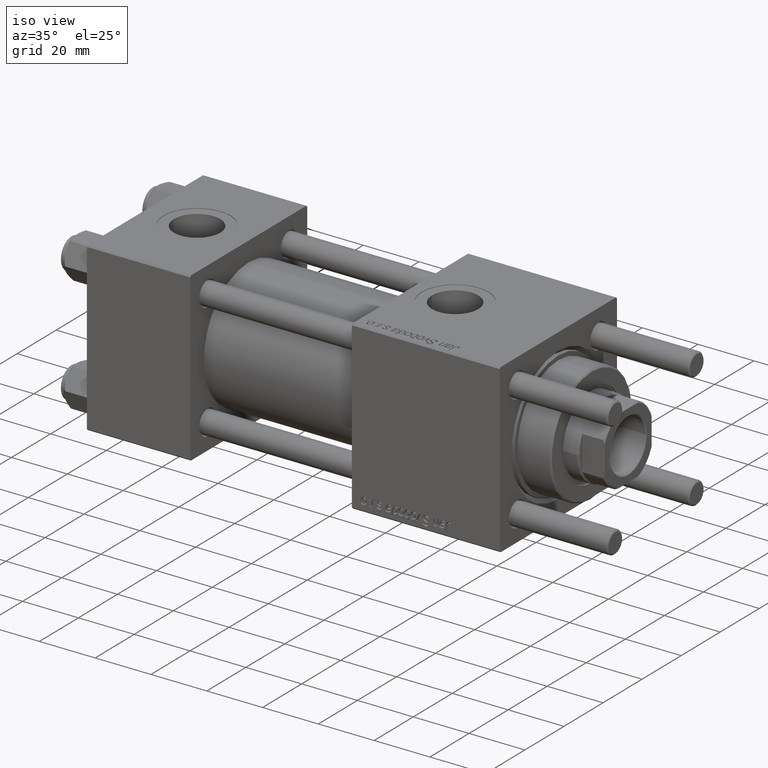
[diagram: clean part render]
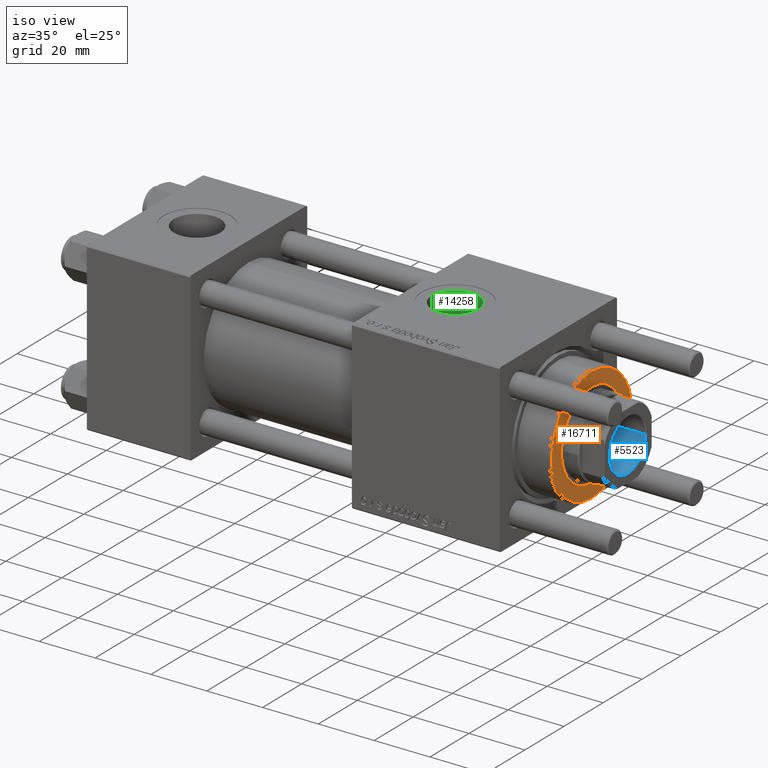
[diagram: same view with three faces highlighted in distinct colors, each labeled with its STEP entity id]
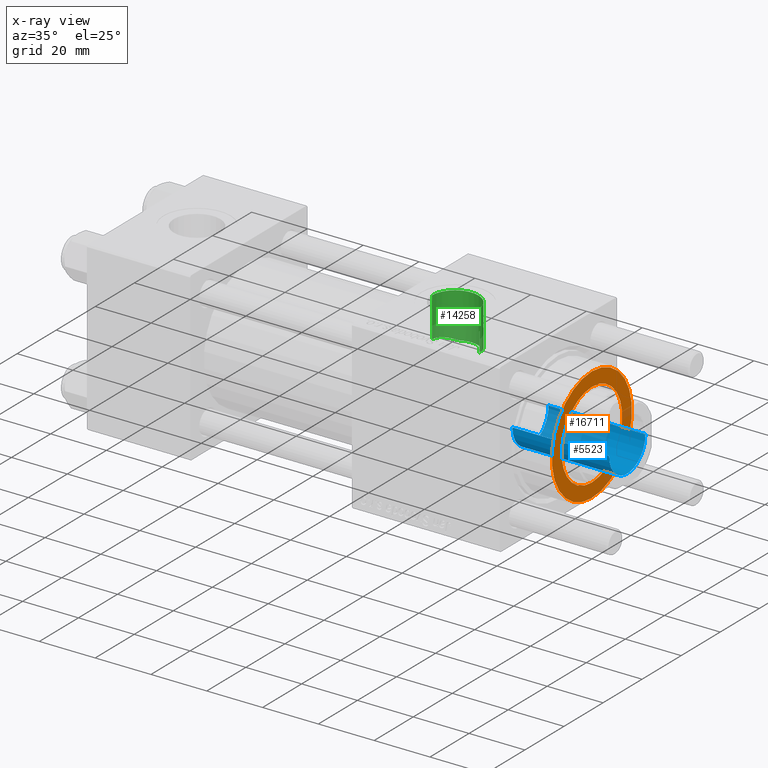
[diagram: x-ray of the same camera — body ghosted, the three highlighted faces saturated]
A machine part, iso view with three faces highlighted in distinct colors.
The next image is the same camera in x-ray (body ghosted, the three faces saturated) — at least one of them is partly hidden behind the body in this view.
Their STEP definitions:

[orange] entity #16711 — the highlighted planar face has unit normal (1, 0, 0).
#8494 = CARTESIAN_POINT ( 'NONE',  ( 15.50000000000000000, 0.000000000000000000, 40.70000000000000284 ) ) ;
#10498 = AXIS2_PLACEMENT_3D ( 'NONE', #40832, #23634, #18322 ) ;
#10615 = ORIENTED_EDGE ( 'NONE', *, *, #32553, .T. ) ;
#10831 = CARTESIAN_POINT ( 'NONE',  ( 0.000000000000000000, 0.000000000000000000, 40.70000000000000284 ) ) ;
#10853 = EDGE_LOOP ( 'NONE', ( #10615, #28571 ) ) ;
#11790 = DIRECTION ( 'NONE',  ( 0.000000000000000000, 0.000000000000000000, 1.000000000000000000 ) ) ;
#13410 = PLANE ( 'NONE',  #22322 ) ;
#14211 = VERTEX_POINT ( 'NONE', #37055 ) ;
#14426 = DIRECTION ( 'NONE',  ( 1.000000000000000000, 0.000000000000000000, 0.000000000000000000 ) ) ;
#16711 = ADVANCED_FACE ( 'NONE', ( #58105, #17848 ), #13410, .T. ) ;
#17848 = FACE_OUTER_BOUND ( 'NONE', #10853, .T. ) ;
#18322 = DIRECTION ( 'NONE',  ( 1.000000000000000000, 0.000000000000000000, 0.000000000000000000 ) ) ;
#20668 = CARTESIAN_POINT ( 'NONE',  ( 0.000000000000000000, 0.000000000000000000, 40.70000000000000284 ) ) ;
#22322 = AXIS2_PLACEMENT_3D ( 'NONE', #31488, #44511, #50121 ) ;
#22737 = CARTESIAN_POINT ( 'NONE',  ( 0.000000000000000000, 0.000000000000000000, 40.70000000000000284 ) ) ;
#23634 = DIRECTION ( 'NONE',  ( 0.000000000000000000, 0.000000000000000000, 1.000000000000000000 ) ) ;
#23742 = CIRCLE ( 'NONE', #10498, 20.49999999999999645 ) ;
#27772 = DIRECTION ( 'NONE',  ( 0.000000000000000000, 0.000000000000000000, 1.000000000000000000 ) ) ;
#28571 = ORIENTED_EDGE ( 'NONE', *, *, #52144, .T. ) ;
#29134 = CIRCLE ( 'NONE', #54630, 15.50000000000000000 ) ;
#30544 = EDGE_CURVE ( 'NONE', #56788, #58514, #34919, .T. ) ;
#31168 = AXIS2_PLACEMENT_3D ( 'NONE', #10831, #56119, #42818 ) ;
#31488 = CARTESIAN_POINT ( 'NONE',  ( 0.000000000000000000, 0.000000000000000000, 40.70000000000000284 ) ) ;
#32553 = EDGE_CURVE ( 'NONE', #14211, #53557, #41595, .T. ) ;
#33617 = EDGE_LOOP ( 'NONE', ( #47674, #43096 ) ) ;
#34919 = CIRCLE ( 'NONE', #31168, 15.50000000000000000 ) ;
#37055 = CARTESIAN_POINT ( 'NONE',  ( -20.49999999999999645, 0.000000000000000000, 40.70000000000000284 ) ) ;
#38733 = DIRECTION ( 'NONE',  ( 1.000000000000000000, 0.000000000000000000, 0.000000000000000000 ) ) ;
#39177 = CARTESIAN_POINT ( 'NONE',  ( 20.49999999999999645, 2.541142108230757480E-15, 40.70000000000000284 ) ) ;
#39183 = EDGE_CURVE ( 'NONE', #58514, #56788, #29134, .T. ) ;
#40832 = CARTESIAN_POINT ( 'NONE',  ( 0.000000000000000000, 0.000000000000000000, 40.70000000000000284 ) ) ;
#41595 = CIRCLE ( 'NONE', #56700, 20.49999999999999645 ) ;
#42818 = DIRECTION ( 'NONE',  ( 1.000000000000000000, 0.000000000000000000, 0.000000000000000000 ) ) ;
#43096 = ORIENTED_EDGE ( 'NONE', *, *, #30544, .F. ) ;
#44511 = DIRECTION ( 'NONE',  ( 0.000000000000000000, 0.000000000000000000, 1.000000000000000000 ) ) ;
#47161 = CARTESIAN_POINT ( 'NONE',  ( -15.50000000000000000, 1.898202538678397557E-15, 40.70000000000000284 ) ) ;
#47674 = ORIENTED_EDGE ( 'NONE', *, *, #39183, .F. ) ;
#50121 = DIRECTION ( 'NONE',  ( 1.000000000000000000, 0.000000000000000000, -0.000000000000000000 ) ) ;
#52144 = EDGE_CURVE ( 'NONE', #53557, #14211, #23742, .T. ) ;
#53557 = VERTEX_POINT ( 'NONE', #39177 ) ;
#54630 = AXIS2_PLACEMENT_3D ( 'NONE', #20668, #11790, #38733 ) ;
#56119 = DIRECTION ( 'NONE',  ( 0.000000000000000000, 0.000000000000000000, 1.000000000000000000 ) ) ;
#56700 = AXIS2_PLACEMENT_3D ( 'NONE', #22737, #27772, #14426 ) ;
#56788 = VERTEX_POINT ( 'NONE', #47161 ) ;
#58105 = FACE_BOUND ( 'NONE', #33617, .T. ) ;
#58514 = VERTEX_POINT ( 'NONE', #8494 ) ;

[blue] entity #5523 — the highlighted cylindrical surface (edge-blend (fillet) strip) has radius 9.25 mm, axis along (1, 0, 0).
#762 = DIRECTION ( 'NONE',  ( 1.000000000000000000, 0.000000000000000000, 0.000000000000000000 ) ) ;
#2015 = LINE ( 'NONE', #37557, #16902 ) ;
#2022 = ORIENTED_EDGE ( 'NONE', *, *, #17522, .F. ) ;
#2674 = EDGE_CURVE ( 'NONE', #7829, #44137, #49438, .T. ) ;
#3426 = CARTESIAN_POINT ( 'NONE',  ( 9.249999999999992895, 0.000000000000000000, 101.0000000000000000 ) ) ;
#4253 = CARTESIAN_POINT ( 'NONE',  ( -9.249999999999992895, 1.132798289211300712E-15, 101.0000000000000000 ) ) ;
#5523 = ADVANCED_FACE ( 'NONE', ( #21948 ), #40014, .F. ) ;
#7829 = VERTEX_POINT ( 'NONE', #3426 ) ;
#8119 = CARTESIAN_POINT ( 'NONE',  ( -9.249999999999994671, 1.132798289211300909E-15, 135.7000000000000455 ) ) ;
#10666 = CARTESIAN_POINT ( 'NONE',  ( 9.249999999999994671, 0.000000000000000000, 135.7000000000000455 ) ) ;
#13202 = LINE ( 'NONE', #13499, #40294 ) ;
#13499 = CARTESIAN_POINT ( 'NONE',  ( -9.249999999999994671, 1.132798289211300909E-15, 136.0000000000000000 ) ) ;
#14100 = CARTESIAN_POINT ( 'NONE',  ( 0.000000000000000000, 0.000000000000000000, 135.7000000000000455 ) ) ;
#16048 = CARTESIAN_POINT ( 'NONE',  ( 0.000000000000000000, 0.000000000000000000, 136.0000000000000000 ) ) ;
#16902 = VECTOR ( 'NONE', #33419, 1000.000000000000000 ) ;
#17522 = EDGE_CURVE ( 'NONE', #44137, #28343, #13202, .T. ) ;
#21948 = FACE_OUTER_BOUND ( 'NONE', #27906, .T. ) ;
#22675 = DIRECTION ( 'NONE',  ( -0.000000000000000000, -0.000000000000000000, 1.000000000000000000 ) ) ;
#22906 = EDGE_CURVE ( 'NONE', #43405, #28343, #36706, .T. ) ;
#25519 = DIRECTION ( 'NONE',  ( 1.000000000000000000, 0.000000000000000000, 0.000000000000000000 ) ) ;
#26315 = AXIS2_PLACEMENT_3D ( 'NONE', #14100, #27144, #762 ) ;
#27144 = DIRECTION ( 'NONE',  ( 0.000000000000000000, 0.000000000000000000, 1.000000000000000000 ) ) ;
#27906 = EDGE_LOOP ( 'NONE', ( #2022, #32679, #46612, #50749 ) ) ;
#28343 = VERTEX_POINT ( 'NONE', #8119 ) ;
#29368 = EDGE_CURVE ( 'NONE', #7829, #43405, #2015, .T. ) ;
#29587 = AXIS2_PLACEMENT_3D ( 'NONE', #55740, #51898, #42732 ) ;
#30856 = DIRECTION ( 'NONE',  ( -0.000000000000000000, -0.000000000000000000, 1.000000000000000000 ) ) ;
#32679 = ORIENTED_EDGE ( 'NONE', *, *, #2674, .F. ) ;
#33419 = DIRECTION ( 'NONE',  ( -0.000000000000000000, -0.000000000000000000, 1.000000000000000000 ) ) ;
#36706 = CIRCLE ( 'NONE', #26315, 9.249999999999994671 ) ;
#37557 = CARTESIAN_POINT ( 'NONE',  ( 9.249999999999994671, 0.000000000000000000, 136.0000000000000000 ) ) ;
#40014 = CYLINDRICAL_SURFACE ( 'NONE', #44786, 9.249999999999994671 ) ;
#40294 = VECTOR ( 'NONE', #22675, 1000.000000000000000 ) ;
#42732 = DIRECTION ( 'NONE',  ( 1.000000000000000000, 0.000000000000000000, 0.000000000000000000 ) ) ;
#43405 = VERTEX_POINT ( 'NONE', #10666 ) ;
#44137 = VERTEX_POINT ( 'NONE', #4253 ) ;
#44786 = AXIS2_PLACEMENT_3D ( 'NONE', #16048, #30856, #25519 ) ;
#46612 = ORIENTED_EDGE ( 'NONE', *, *, #29368, .T. ) ;
#49438 = CIRCLE ( 'NONE', #29587, 9.249999999999992895 ) ;
#50749 = ORIENTED_EDGE ( 'NONE', *, *, #22906, .T. ) ;
#51898 = DIRECTION ( 'NONE',  ( -0.000000000000000000, -0.000000000000000000, 1.000000000000000000 ) ) ;
#55740 = CARTESIAN_POINT ( 'NONE',  ( 0.000000000000000000, 0.000000000000000000, 101.0000000000000000 ) ) ;

[green] entity #14258 — the highlighted cylindrical surface (edge-blend (fillet) strip) has radius 8.33 mm, axis along (0, 0, -1).
#283 = ORIENTED_EDGE ( 'NONE', *, *, #36643, .F. ) ;
#1935 = CARTESIAN_POINT ( 'NONE',  ( 119.2999999999999829, 0.7063285354565354002, 15.48389808801387701 ) ) ;
#3480 = CARTESIAN_POINT ( 'NONE',  ( 119.2999999999999829, 0.7063285354565354002, 22.48891060056044466 ) ) ;
#4631 = EDGE_LOOP ( 'NONE', ( #283, #26052, #56955, #25205, #39064, #50948, #38801, #6866 ) ) ;
#5782 = CARTESIAN_POINT ( 'NONE',  ( 118.2534000047989053, 4.111271999610588423, 14.94835106229172972 ) ) ;
#5992 = EDGE_CURVE ( 'NONE', #12126, #55106, #22329, .T. ) ;
#6077 = CARTESIAN_POINT ( 'NONE',  ( 117.0000841562242044, 5.788852077867601587, 14.38116921446072638 ) ) ;
#6358 = CARTESIAN_POINT ( 'NONE',  ( 105.9544709984673005, 6.638852620574125396, 14.00831860901981685 ) ) ;
#6368 = CARTESIAN_POINT ( 'NONE',  ( 119.3300000000000125, -2.449316168263869821E-15, 29.79999999999999716 ) ) ;
#6535 = AXIS2_PLACEMENT_3D ( 'NONE', #12213, #11921, #56614 ) ;
#6866 = ORIENTED_EDGE ( 'NONE', *, *, #10557, .T. ) ;
#7607 = EDGE_CURVE ( 'NONE', #37468, #20586, #39113, .T. ) ;
#7715 = DIRECTION ( 'NONE',  ( 0.000000000000000000, 0.000000000000000000, -1.000000000000000000 ) ) ;
#8549 = DIRECTION ( 'NONE',  ( 1.000000000000000000, 0.000000000000000000, 0.000000000000000000 ) ) ;
#9948 = CARTESIAN_POINT ( 'NONE',  ( 117.6798436837577526, 4.989036688639853168, 14.67824946145072573 ) ) ;
#10557 = EDGE_CURVE ( 'NONE', #37468, #41539, #29313, .T. ) ;
#10672 = FACE_OUTER_BOUND ( 'NONE', #4631, .T. ) ;
#11391 = CARTESIAN_POINT ( 'NONE',  ( 102.6699999999999591, 0.3922003781329697625, 15.50000000000000711 ) ) ;
#11921 = DIRECTION ( 'NONE',  ( -0.000000000000000000, -0.000000000000000000, -1.000000000000000000 ) ) ;
#12126 = VERTEX_POINT ( 'NONE', #22585 ) ;
#12213 = CARTESIAN_POINT ( 'NONE',  ( 111.0000000000000000, -3.469446951953613794E-15, 29.79999999999999716 ) ) ;
#14258 = ADVANCED_FACE ( 'NONE', ( #10672 ), #14540, .F. ) ;
#14540 = CYLINDRICAL_SURFACE ( 'NONE', #47784, 8.330000000000003624 ) ;
#14684 = CARTESIAN_POINT ( 'NONE',  ( 118.7201712771789062, 3.148968827298817885, 15.18062598671787811 ) ) ;
#15265 = CARTESIAN_POINT ( 'NONE',  ( 117.4652904211443172, 5.264203456503591561, 14.58139219426323230 ) ) ;
#15547 = CARTESIAN_POINT ( 'NONE',  ( 102.6975598593861463, 0.7810156608275541368, 15.48513758060886225 ) ) ;
#15558 = CARTESIAN_POINT ( 'NONE',  ( 115.3902205841902173, 7.114878828643523612, 13.77542063413991791 ) ) ;
#15814 = VECTOR ( 'NONE', #55198, 1000.000000000000000 ) ;
#16416 = CARTESIAN_POINT ( 'NONE',  ( 104.8202029067652745, 5.636575315625639071, 14.44950328828300279 ) ) ;
#16603 = VERTEX_POINT ( 'NONE', #38324 ) ;
#16863 = AXIS2_PLACEMENT_3D ( 'NONE', #22180, #57396, #8549 ) ;
#17105 = CARTESIAN_POINT ( 'NONE',  ( 119.3300000000000125, 2.755455270027974659E-15, 22.50000000000000355 ) ) ;
#18149 = VECTOR ( 'NONE', #33084, 1000.000000000000000 ) ;
#19086 = LINE ( 'NONE', #50193, #15814 ) ;
#19127 = CARTESIAN_POINT ( 'NONE',  ( 102.6700000000000017, -3.469446951953613794E-15, 29.79999999999999716 ) ) ;
#19240 = CARTESIAN_POINT ( 'NONE',  ( 107.2451498032545061, 7.435724578008534813, 13.59999999999999076 ) ) ;
#19549 = DIRECTION ( 'NONE',  ( 0.000000000000000000, 0.000000000000000000, -1.000000000000000000 ) ) ;
#20586 = VERTEX_POINT ( 'NONE', #24427 ) ;
#20606 = LINE ( 'NONE', #25062, #18149 ) ;
#21227 = VECTOR ( 'NONE', #7715, 1000.000000000000000 ) ;
#21580 = B_SPLINE_CURVE_WITH_KNOTS ( 'NONE', 3,
 ( #46085, #15558, #55519, #56100, #6077, #15265, #9948, #54941, #5782, #55228, #14684, #24443, #24151, #1935 ),
 .UNSPECIFIED., .F., .F.,
 ( 4, 2, 2, 2, 2, 2, 4 ),
 ( 1.762687342693953287E-17, 0.002167183143396330877, 0.003250774715094488510, 0.004334366286792645274, 0.005417957858490802039, 0.006501549430188960539, 0.008668732573585259324 ),
 .UNSPECIFIED. ) ;
#22180 = CARTESIAN_POINT ( 'NONE',  ( 111.0000000000000000, -3.469446951953613794E-15, 13.59999999999999076 ) ) ;
#22329 = B_SPLINE_CURVE_WITH_KNOTS ( 'NONE', 3,
 ( #29758, #11391, #15547, #56089, #47812, #33330, #56667, #24729, #51370, #56958, #16416, #28886, #6358, #47530, #24432, #51082 ),
 .UNSPECIFIED., .F., .F.,
 ( 4, 2, 2, 2, 2, 2, 2, 4 ),
 ( 0.009374448786900189609, 0.01054305657029121907, 0.01171166435368224679, 0.01288027213707327798, 0.01404887992046430570, 0.01638609548724638543, 0.01755470327063740621, 0.01872331105402843393 ),
 .UNSPECIFIED. ) ;
#22585 = CARTESIAN_POINT ( 'NONE',  ( 102.6699999999996180, -2.713081726590588117E-14, 15.50000000000020428 ) ) ;
#23978 = EDGE_CURVE ( 'NONE', #16603, #55106, #34839, .T. ) ;
#24151 = CARTESIAN_POINT ( 'NONE',  ( 119.2378105529334107, 1.437110862293733193, 15.45056201154794806 ) ) ;
#24427 = CARTESIAN_POINT ( 'NONE',  ( 119.2999999999999829, 0.7063285354565354002, 15.48389808801387701 ) ) ;
#24432 = CARTESIAN_POINT ( 'NONE',  ( 106.9024469684808594, 7.262668436259995808, 13.69461748577755777 ) ) ;
#24443 = CARTESIAN_POINT ( 'NONE',  ( 119.0827063978109663, 2.138072539437815500, 15.36711703318997735 ) ) ;
#24729 = CARTESIAN_POINT ( 'NONE',  ( 103.5505958705756484, 3.747264868531968940, 15.04448363899141938 ) ) ;
#25062 = CARTESIAN_POINT ( 'NONE',  ( 102.6700000000000017, -3.469446951953613794E-15, 52.79999999999999716 ) ) ;
#25205 = ORIENTED_EDGE ( 'NONE', *, *, #5992, .T. ) ;
#25503 = CARTESIAN_POINT ( 'NONE',  ( 119.2999999999999829, 0.7063285354565354002, 52.79999999999999716 ) ) ;
#26052 = ORIENTED_EDGE ( 'NONE', *, *, #41034, .F. ) ;
#28056 = VERTEX_POINT ( 'NONE', #19127 ) ;
#28886 = CARTESIAN_POINT ( 'NONE',  ( 105.6573382553999210, 6.402176101401404473, 14.11876137656380870 ) ) ;
#29313 = B_SPLINE_CURVE_WITH_KNOTS ( 'NONE', 3,
 ( #3480, #39613, #57644, #17105 ),
 .UNSPECIFIED., .F., .F.,
 ( 4, 4 ),
 ( 0.000000000000000000, 0.0007063285354565328363 ),
 .UNSPECIFIED. ) ;
#29758 = CARTESIAN_POINT ( 'NONE',  ( 102.6699999999996180, -2.713081726590588117E-14, 15.50000000000020428 ) ) ;
#33084 = DIRECTION ( 'NONE',  ( 0.000000000000000000, 0.000000000000000000, -1.000000000000000000 ) ) ;
#33330 = CARTESIAN_POINT ( 'NONE',  ( 103.1053547801138848, 2.686155454129544484, 15.27016736770789862 ) ) ;
#34839 = CIRCLE ( 'NONE', #16863, 8.330000000000003624 ) ;
#36643 = EDGE_CURVE ( 'NONE', #43841, #41539, #19086, .T. ) ;
#37468 = VERTEX_POINT ( 'NONE', #51310 ) ;
#38324 = CARTESIAN_POINT ( 'NONE',  ( 114.7548501967454939, 7.435724578008534813, 13.59999999999999076 ) ) ;
#38801 = ORIENTED_EDGE ( 'NONE', *, *, #7607, .F. ) ;
#39064 = ORIENTED_EDGE ( 'NONE', *, *, #23978, .F. ) ;
#39113 = LINE ( 'NONE', #25503, #21227 ) ;
#39613 = CARTESIAN_POINT ( 'NONE',  ( 119.3200361445783102, 0.4708856903043578401, 22.49630535626710781 ) ) ;
#41034 = EDGE_CURVE ( 'NONE', #28056, #43841, #47221, .T. ) ;
#41539 = VERTEX_POINT ( 'NONE', #52052 ) ;
#42071 = CARTESIAN_POINT ( 'NONE',  ( 111.0000000000000000, -3.469446951953613794E-15, 52.79999999999999716 ) ) ;
#43841 = VERTEX_POINT ( 'NONE', #6368 ) ;
#46085 = CARTESIAN_POINT ( 'NONE',  ( 114.7548501967454939, 7.435724578008534813, 13.59999999999999076 ) ) ;
#47221 = CIRCLE ( 'NONE', #6535, 8.330000000000003624 ) ;
#47530 = CARTESIAN_POINT ( 'NONE',  ( 106.5763594891585910, 7.068460345354880658, 13.79652937211603003 ) ) ;
#47784 = AXIS2_PLACEMENT_3D ( 'NONE', #42071, #19549, #55377 ) ;
#47812 = CARTESIAN_POINT ( 'NONE',  ( 102.8890011916722216, 1.937150640225431042, 15.38313654488691284 ) ) ;
#50193 = CARTESIAN_POINT ( 'NONE',  ( 119.3300000000000125, -2.449316168263869032E-15, 52.79999999999999716 ) ) ;
#50948 = ORIENTED_EDGE ( 'NONE', *, *, #57504, .T. ) ;
#51082 = CARTESIAN_POINT ( 'NONE',  ( 107.2451498032545061, 7.435724578008534813, 13.59999999999999076 ) ) ;
#51310 = CARTESIAN_POINT ( 'NONE',  ( 119.2999999999999829, 0.7063285354565354002, 22.48891060056044466 ) ) ;
#51370 = CARTESIAN_POINT ( 'NONE',  ( 103.7310443908884849, 4.086272943823808568, 14.95550201764395837 ) ) ;
#52052 = CARTESIAN_POINT ( 'NONE',  ( 119.3300000000000125, 2.755455270027974659E-15, 22.50000000000000355 ) ) ;
#54469 = EDGE_CURVE ( 'NONE', #28056, #12126, #20606, .T. ) ;
#54941 = CARTESIAN_POINT ( 'NONE',  ( 118.0738984406374641, 4.412568364521857411, 14.86172045093009686 ) ) ;
#55106 = VERTEX_POINT ( 'NONE', #19240 ) ;
#55198 = DIRECTION ( 'NONE',  ( 0.000000000000000000, 0.000000000000000000, -1.000000000000000000 ) ) ;
#55228 = CARTESIAN_POINT ( 'NONE',  ( 118.5762318573483185, 3.480672338514394504, 15.10763638059246716 ) ) ;
#55377 = DIRECTION ( 'NONE',  ( -1.000000000000000000, 0.000000000000000000, 0.000000000000000000 ) ) ;
#55519 = CARTESIAN_POINT ( 'NONE',  ( 115.9653705457624824, 6.724419165648812147, 13.97437896738291840 ) ) ;
#56089 = CARTESIAN_POINT ( 'NONE',  ( 102.8066106803055249, 1.552053222944098865, 15.42694403133658909 ) ) ;
#56100 = CARTESIAN_POINT ( 'NONE',  ( 116.7502179845313890, 6.036956813941063871, 14.27823247417043540 ) ) ;
#56614 = DIRECTION ( 'NONE',  ( 1.000000000000000000, 0.000000000000000000, 0.000000000000000000 ) ) ;
#56667 = CARTESIAN_POINT ( 'NONE',  ( 103.2381405738433386, 3.047811366702672498, 15.20162253944664776 ) ) ;
#56955 = ORIENTED_EDGE ( 'NONE', *, *, #54469, .T. ) ;
#56958 = CARTESIAN_POINT ( 'NONE',  ( 104.3389503160342855, 5.060146834073014688, 14.66641001412193823 ) ) ;
#57396 = DIRECTION ( 'NONE',  ( 0.000000000000000000, 0.000000000000000000, 1.000000000000000000 ) ) ;
#57504 = EDGE_CURVE ( 'NONE', #16603, #20586, #21580, .T. ) ;
#57644 = CARTESIAN_POINT ( 'NONE',  ( 119.3300000000000125, 0.2354428451521802246, 22.50000000000000355 ) ) ;